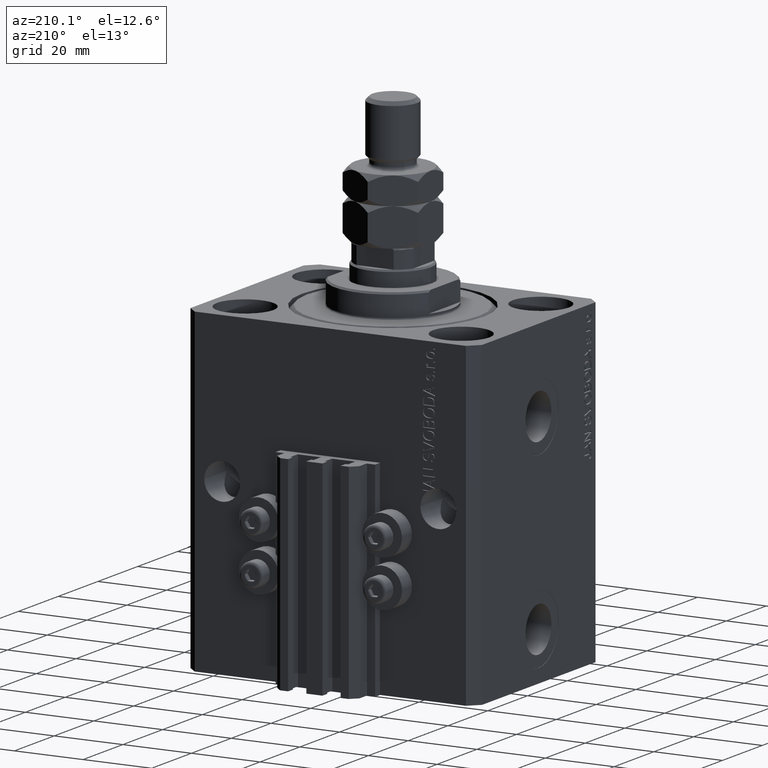
[diagram: clean part render]
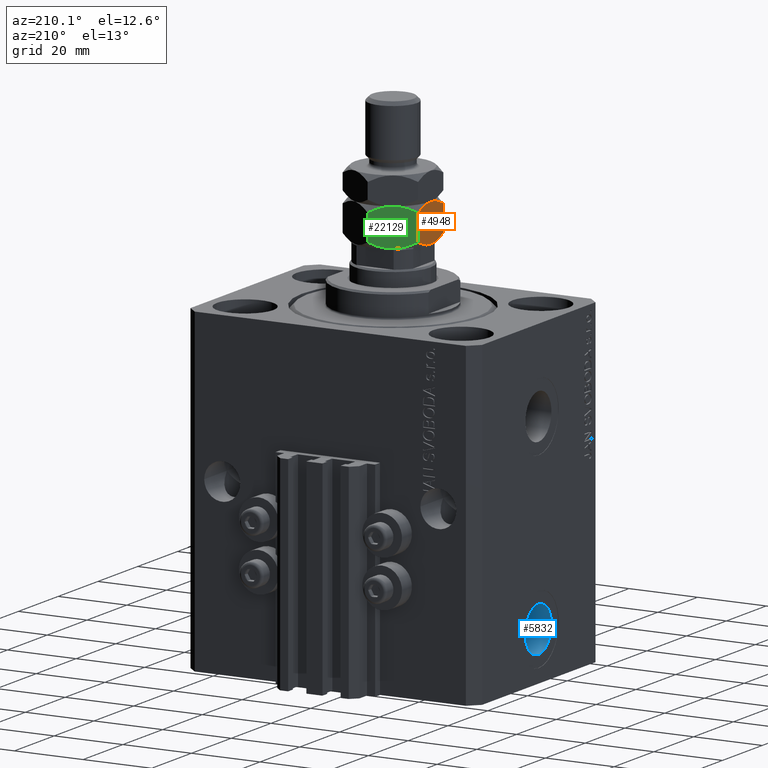
[diagram: same view with three faces highlighted in distinct colors, each labeled with its STEP entity id]
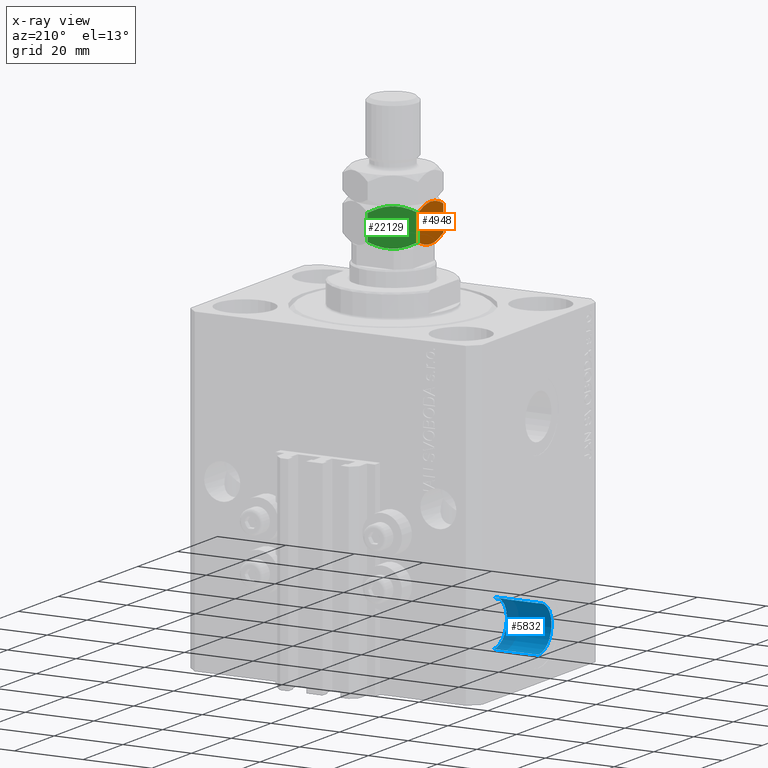
[diagram: x-ray of the same camera — body ghosted, the three highlighted faces saturated]
A machine part, auxiliary view with three faces highlighted in distinct colors.
The next image is the same camera in x-ray (body ghosted, the three faces saturated) — at least one of them is partly hidden behind the body in this view.
Their STEP definitions:

[orange] entity #4948 — the highlighted planar face has unit normal (1, 0, 0).
#365 = CARTESIAN_POINT ( 'NONE',  ( -11.00000000000000178, 4.344649988696095200, 0.7819333922108999690 ) ) ;
#545 = ORIENTED_EDGE ( 'NONE', *, *, #19711, .F. ) ;
#611 = CARTESIAN_POINT ( 'NONE',  ( -11.00000000000000000, 2.731989201781030108, 0.3224669455115858896 ) ) ;
#1012 = VERTEX_POINT ( 'NONE', #34769 ) ;
#2225 = CARTESIAN_POINT ( 'NONE',  ( -10.99999999999999822, -4.323029509133801795, 0.8096537352537663823 ) ) ;
#2493 = CARTESIAN_POINT ( 'NONE',  ( -10.99999999999999822, -5.363576505757326807, 9.791932305492514033 ) ) ;
#2686 = LINE ( 'NONE', #18270, #17317 ) ;
#2770 = ORIENTED_EDGE ( 'NONE', *, *, #49344, .T. ) ;
#3883 = CARTESIAN_POINT ( 'NONE',  ( -11.00000000000000178, 1.099784029505287197, 0.04170177774201792864 ) ) ;
#4185 = VECTOR ( 'NONE', #22500, 1000.000000000000000 ) ;
#4310 = CARTESIAN_POINT ( 'NONE',  ( -11.00000000000000000, 0.000000000000000000, 0.000000000000000000 ) ) ;
#4611 = CARTESIAN_POINT ( 'NONE',  ( -10.99999999999999467, 0.000000000000000000, 11.00000000000000000 ) ) ;
#4622 = CARTESIAN_POINT ( 'NONE',  ( -11.00000000000000178, 0.5516605423237670447, -8.385626177817573357E-17 ) ) ;
#4948 = ADVANCED_FACE ( 'NONE', ( #36039 ), #32269, .F. ) ;
#5483 = CARTESIAN_POINT ( 'NONE',  ( -10.99999999999999822, 2.205563362884376488, 10.79423439979602861 ) ) ;
#5726 = CARTESIAN_POINT ( 'NONE',  ( -11.00000000000000000, 6.350852961085890591, 9.298294077828234805 ) ) ;
#6004 = CARTESIAN_POINT ( 'NONE',  ( -11.00000000000000178, -4.344649988696089871, 10.21806660778910114 ) ) ;
#6180 = VERTEX_POINT ( 'NONE', #4310 ) ;
#8736 = ORIENTED_EDGE ( 'NONE', *, *, #31272, .F. ) ;
#10745 = ORIENTED_EDGE ( 'NONE', *, *, #24857, .F. ) ;
#11056 = EDGE_CURVE ( 'NONE', #14009, #21918, #26026, .T. ) ;
#11295 = ORIENTED_EDGE ( 'NONE', *, *, #11056, .F. ) ;
#12150 = CARTESIAN_POINT ( 'NONE',  ( -10.99999999999999822, 5.363576505757334800, 1.208067694507487744 ) ) ;
#13014 = CARTESIAN_POINT ( 'NONE',  ( -11.00000000000000178, 1.381217716854158839, 10.91695300848609840 ) ) ;
#13190 = CARTESIAN_POINT ( 'NONE',  ( -11.00000000000000000, 6.350852961085890591, 11.00000000000000000 ) ) ;
#13270 = CARTESIAN_POINT ( 'NONE',  ( -11.00000000000000178, 0.5501206218979307616, 10.98970138300551191 ) ) ;
#13445 = DIRECTION ( 'NONE',  ( 1.000000000000000000, 0.000000000000000000, -0.000000000000000000 ) ) ;
#13763 = CARTESIAN_POINT ( 'NONE',  ( -10.99999999999999822, 4.323029509133805348, 10.19034626474623195 ) ) ;
#14009 = VERTEX_POINT ( 'NONE', #4611 ) ;
#14043 = CARTESIAN_POINT ( 'NONE',  ( -11.00000000000000178, -0.5516605423237683770, 11.00000000000000355 ) ) ;
#14204 = B_SPLINE_CURVE_WITH_KNOTS ( 'NONE', 3,
 ( #31483, #4622, #3883, #23723, #611, #365, #12150, #46845 ),
 .UNSPECIFIED., .F., .F.,
 ( 4, 2, 2, 4 ),
 ( 0.02548310755563732571, 0.02714502201312678914, 0.02880693647061625257, 0.03213076538559517942 ),
 .UNSPECIFIED. ) ;
#14486 = DIRECTION ( 'NONE',  ( -0.000000000000000000, -0.000000000000000000, -1.000000000000000000 ) ) ;
#15421 = CARTESIAN_POINT ( 'NONE',  ( -11.00000000000000000, -6.350852961085885262, 9.298294077828238358 ) ) ;
#17298 = CARTESIAN_POINT ( 'NONE',  ( -11.00000000000000000, -3.802713407336412832, 0.6276910765349058563 ) ) ;
#17300 = CARTESIAN_POINT ( 'NONE',  ( -11.00000000000000000, 3.802713407336418605, 10.37230892346509670 ) ) ;
#17317 = VECTOR ( 'NONE', #14486, 1000.000000000000000 ) ;
#18265 = VERTEX_POINT ( 'NONE', #26301 ) ;
#18270 = CARTESIAN_POINT ( 'NONE',  ( -11.00000000000000000, 6.350852961085890591, 11.00000000000000000 ) ) ;
#18593 = VERTEX_POINT ( 'NONE', #44604 ) ;
#19711 = EDGE_CURVE ( 'NONE', #18265, #6180, #27665, .T. ) ;
#21283 = EDGE_LOOP ( 'NONE', ( #545, #10745, #11295, #21351, #2770, #8736 ) ) ;
#21312 = CARTESIAN_POINT ( 'NONE',  ( -11.00000000000000178, -5.349315167928746284, 1.222704691498690321 ) ) ;
#21351 = ORIENTED_EDGE ( 'NONE', *, *, #48158, .F. ) ;
#21814 = CARTESIAN_POINT ( 'NONE',  ( -11.00000000000000355, -2.743986917173865336, 0.3257244675391401389 ) ) ;
#21844 = CARTESIAN_POINT ( 'NONE',  ( -10.99999999999999822, -2.189438957741030478, 10.79717463374928421 ) ) ;
#21918 = VERTEX_POINT ( 'NONE', #15421 ) ;
#22500 = DIRECTION ( 'NONE',  ( -0.000000000000000000, -0.000000000000000000, -1.000000000000000000 ) ) ;
#22748 = LINE ( 'NONE', #38048, #4185 ) ;
#23723 = CARTESIAN_POINT ( 'NONE',  ( -10.99999999999999822, 2.189438957741033587, 0.2028253662507157051 ) ) ;
#24857 = EDGE_CURVE ( 'NONE', #21918, #18265, #22748, .T. ) ;
#25097 = CARTESIAN_POINT ( 'NONE',  ( -11.00000000000000000, -6.350852961085885262, 9.298294077828238358 ) ) ;
#25160 = B_SPLINE_CURVE_WITH_KNOTS ( 'NONE', 3,
 ( #5726, #33103, #44423, #13763, #17300, #48460, #5483, #13014, #36366, #13270, #44168, #48204 ),
 .UNSPECIFIED., .F., .F.,
 ( 4, 2, 2, 2, 2, 4 ),
 ( 0.01886453216956118090, 0.02051917601608021710, 0.02217381986259925331, 0.02382846370911829298, 0.02465578563237780935, 0.02548310755563732918 ),
 .UNSPECIFIED. ) ;
#26026 = B_SPLINE_CURVE_WITH_KNOTS ( 'NONE', 3,
 ( #32875, #14043, #28865, #21844, #33866, #6004, #2493, #25097 ),
 .UNSPECIFIED., .F., .F.,
 ( 4, 2, 2, 4 ),
 ( 0.02548310755563732918, 0.02714502201312678914, 0.02880693647061624910, 0.03213076538559517248 ),
 .UNSPECIFIED. ) ;
#26301 = CARTESIAN_POINT ( 'NONE',  ( -11.00000000000000000, -6.350852961085885262, 1.701705922171762309 ) ) ;
#27665 = B_SPLINE_CURVE_WITH_KNOTS ( 'NONE', 3,
 ( #29590, #44928, #21312, #2225, #17298, #21814, #41141, #29086, #44418, #32605, #28835, #40644 ),
 .UNSPECIFIED., .F., .F.,
 ( 4, 2, 2, 2, 2, 4 ),
 ( 0.01886453216956118784, 0.02051917601608022057, 0.02217381986259925677, 0.02382846370911829298, 0.02465578563237780935, 0.02548310755563732571 ),
 .UNSPECIFIED. ) ;
#28835 = CARTESIAN_POINT ( 'NONE',  ( -11.00000000000000000, -0.2746235576716408167, 4.192813088908779283E-17 ) ) ;
#28865 = CARTESIAN_POINT ( 'NONE',  ( -11.00000000000000178, -1.099784029505286753, 10.95829822225798189 ) ) ;
#29086 = CARTESIAN_POINT ( 'NONE',  ( -11.00000000000000178, -1.381217716854155286, 0.08304699151390193546 ) ) ;
#29590 = CARTESIAN_POINT ( 'NONE',  ( -11.00000000000000000, -6.350852961085885262, 1.701705922171762309 ) ) ;
#31272 = EDGE_CURVE ( 'NONE', #6180, #1012, #14204, .T. ) ;
#31483 = CARTESIAN_POINT ( 'NONE',  ( -11.00000000000000000, 0.000000000000000000, 0.000000000000000000 ) ) ;
#32269 = PLANE ( 'NONE',  #36106 ) ;
#32605 = CARTESIAN_POINT ( 'NONE',  ( -11.00000000000000178, -0.5501206218979342033, 0.01029861699449343727 ) ) ;
#32775 = DIRECTION ( 'NONE',  ( -0.000000000000000000, 0.000000000000000000, -1.000000000000000000 ) ) ;
#32875 = CARTESIAN_POINT ( 'NONE',  ( -10.99999999999999467, 0.000000000000000000, 11.00000000000000000 ) ) ;
#33103 = CARTESIAN_POINT ( 'NONE',  ( -10.99999999999999822, 5.856287164594794703, 9.545576976073807174 ) ) ;
#33866 = CARTESIAN_POINT ( 'NONE',  ( -11.00000000000000000, -2.731989201781029220, 10.67753305448841772 ) ) ;
#34769 = CARTESIAN_POINT ( 'NONE',  ( -11.00000000000000000, 6.350852961085892368, 1.701705922171765195 ) ) ;
#36039 = FACE_OUTER_BOUND ( 'NONE', #21283, .T. ) ;
#36106 = AXIS2_PLACEMENT_3D ( 'NONE', #13190, #13445, #32775 ) ;
#36366 = CARTESIAN_POINT ( 'NONE',  ( -11.00000000000000000, 1.102880524211963253, 10.94828572630293273 ) ) ;
#38048 = CARTESIAN_POINT ( 'NONE',  ( -11.00000000000000000, -6.350852961085885262, 11.00000000000000000 ) ) ;
#40644 = CARTESIAN_POINT ( 'NONE',  ( -11.00000000000000000, 0.000000000000000000, 0.000000000000000000 ) ) ;
#41141 = CARTESIAN_POINT ( 'NONE',  ( -10.99999999999999822, -2.205563362884371603, 0.2057656002039695009 ) ) ;
#44168 = CARTESIAN_POINT ( 'NONE',  ( -11.00000000000000000, 0.2746235576716384852, 11.00000000000000355 ) ) ;
#44418 = CARTESIAN_POINT ( 'NONE',  ( -11.00000000000000000, -1.102880524211966140, 0.05171427369706943500 ) ) ;
#44423 = CARTESIAN_POINT ( 'NONE',  ( -11.00000000000000178, 5.349315167928749837, 9.777295308501310345 ) ) ;
#44604 = CARTESIAN_POINT ( 'NONE',  ( -11.00000000000000000, 6.350852961085890591, 9.298294077828234805 ) ) ;
#44928 = CARTESIAN_POINT ( 'NONE',  ( -10.99999999999999822, -5.856287164594788486, 1.454423023926191938 ) ) ;
#46845 = CARTESIAN_POINT ( 'NONE',  ( -11.00000000000000000, 6.350852961085892368, 1.701705922171765195 ) ) ;
#48158 = EDGE_CURVE ( 'NONE', #18593, #14009, #25160, .T. ) ;
#48204 = CARTESIAN_POINT ( 'NONE',  ( -10.99999999999999467, 0.000000000000000000, 11.00000000000000000 ) ) ;
#48460 = CARTESIAN_POINT ( 'NONE',  ( -11.00000000000000355, 2.743986917173868889, 10.67427553246086447 ) ) ;
#49344 = EDGE_CURVE ( 'NONE', #18593, #1012, #2686, .T. ) ;

[blue] entity #5832 — the highlighted cylindrical surface (edge-blend (fillet) strip) has radius 6.58 mm, axis along (-1, -0, -0).
#50 = VERTEX_POINT ( 'NONE', #8702 ) ;
#110 = DIRECTION ( 'NONE',  ( 0.000000000000000000, 0.000000000000000000, 1.000000000000000000 ) ) ;
#1738 = AXIS2_PLACEMENT_3D ( 'NONE', #48171, #13729, #20777 ) ;
#2468 = DIRECTION ( 'NONE',  ( -1.000000000000000000, -0.000000000000000000, -0.000000000000000000 ) ) ;
#2605 = AXIS2_PLACEMENT_3D ( 'NONE', #31680, #43500, #32681 ) ;
#3756 = VERTEX_POINT ( 'NONE', #15898 ) ;
#5832 = ADVANCED_FACE ( 'NONE', ( #19213 ), #33773, .F. ) ;
#7383 = VECTOR ( 'NONE', #31791, 1000.000000000000000 ) ;
#8702 = CARTESIAN_POINT ( 'NONE',  ( -29.40000000000000213, -8.868892119425131862E-15, -85.57999999999999829 ) ) ;
#9492 = CARTESIAN_POINT ( 'NONE',  ( -29.40000000000000213, -8.868892119425131862E-15, -85.57999999999999829 ) ) ;
#9969 = EDGE_CURVE ( 'NONE', #26102, #3756, #24253, .T. ) ;
#13729 = DIRECTION ( 'NONE',  ( -1.000000000000000000, 0.000000000000000000, 0.000000000000000000 ) ) ;
#14496 = VERTEX_POINT ( 'NONE', #34636 ) ;
#15192 = CARTESIAN_POINT ( 'NONE',  ( -29.40000000000000213, -9.674709713264090904E-15, -79.00000000000000000 ) ) ;
#15898 = CARTESIAN_POINT ( 'NONE',  ( -42.39999999999999858, -9.674709713264090904E-15, -72.42000000000000171 ) ) ;
#19213 = FACE_OUTER_BOUND ( 'NONE', #41324, .T. ) ;
#20777 = DIRECTION ( 'NONE',  ( 0.000000000000000000, 0.000000000000000000, 1.000000000000000000 ) ) ;
#23646 = EDGE_CURVE ( 'NONE', #14496, #3756, #46649, .T. ) ;
#24021 = CARTESIAN_POINT ( 'NONE',  ( -29.40000000000000213, -9.674709713264090904E-15, -72.42000000000000171 ) ) ;
#24253 = CIRCLE ( 'NONE', #2605, 6.580000000000002736 ) ;
#26102 = VERTEX_POINT ( 'NONE', #41287 ) ;
#26373 = EDGE_CURVE ( 'NONE', #50, #14496, #47483, .T. ) ;
#30840 = EDGE_CURVE ( 'NONE', #50, #26102, #36111, .T. ) ;
#31680 = CARTESIAN_POINT ( 'NONE',  ( -42.39999999999999858, -9.674709713264090904E-15, -79.00000000000000000 ) ) ;
#31791 = DIRECTION ( 'NONE',  ( -1.000000000000000000, -0.000000000000000000, -0.000000000000000000 ) ) ;
#32681 = DIRECTION ( 'NONE',  ( 0.000000000000000000, 0.000000000000000000, 1.000000000000000000 ) ) ;
#33773 = CYLINDRICAL_SURFACE ( 'NONE', #40157, 6.580000000000002736 ) ;
#34271 = DIRECTION ( 'NONE',  ( -1.000000000000000000, -0.000000000000000000, -0.000000000000000000 ) ) ;
#34636 = CARTESIAN_POINT ( 'NONE',  ( -29.40000000000000213, -9.674709713264090904E-15, -72.42000000000000171 ) ) ;
#36111 = LINE ( 'NONE', #9492, #43603 ) ;
#39881 = ORIENTED_EDGE ( 'NONE', *, *, #26373, .F. ) ;
#40157 = AXIS2_PLACEMENT_3D ( 'NONE', #15192, #34271, #110 ) ;
#40283 = ORIENTED_EDGE ( 'NONE', *, *, #23646, .F. ) ;
#41287 = CARTESIAN_POINT ( 'NONE',  ( -42.39999999999999858, -8.868892119425131862E-15, -85.57999999999999829 ) ) ;
#41324 = EDGE_LOOP ( 'NONE', ( #39881, #47644, #42320, #40283 ) ) ;
#42320 = ORIENTED_EDGE ( 'NONE', *, *, #9969, .T. ) ;
#43500 = DIRECTION ( 'NONE',  ( -1.000000000000000000, 0.000000000000000000, 0.000000000000000000 ) ) ;
#43603 = VECTOR ( 'NONE', #2468, 1000.000000000000000 ) ;
#46649 = LINE ( 'NONE', #24021, #7383 ) ;
#47483 = CIRCLE ( 'NONE', #1738, 6.580000000000002736 ) ;
#47644 = ORIENTED_EDGE ( 'NONE', *, *, #30840, .T. ) ;
#48171 = CARTESIAN_POINT ( 'NONE',  ( -29.40000000000000213, -9.674709713264090904E-15, -79.00000000000000000 ) ) ;

[green] entity #22129 — the highlighted planar face has unit normal (0.5, -0.866, 0).
#578 = EDGE_CURVE ( 'NONE', #14090, #18593, #42290, .T. ) ;
#822 = DIRECTION ( 'NONE',  ( 0.8660254037844389297, 0.4999999999999992784, 0.000000000000000000 ) ) ;
#939 = LINE ( 'NONE', #1183, #15912 ) ;
#1012 = VERTEX_POINT ( 'NONE', #34769 ) ;
#1016 = CARTESIAN_POINT ( 'NONE',  ( -6.470625887979888802, 8.965888323921223702, 0.04365929743512723255 ) ) ;
#1043 = CARTESIAN_POINT ( 'NONE',  ( -10.13851939750335696, 6.848229018838968507, 9.795670135581390880 ) ) ;
#1183 = CARTESIAN_POINT ( 'NONE',  ( 0.000000000000000000, 12.70170592217176342, 11.00000000000000000 ) ) ;
#2686 = LINE ( 'NONE', #18270, #17317 ) ;
#4816 = CARTESIAN_POINT ( 'NONE',  ( -5.499999999999990230, 9.526279441628824785, 11.00000000000000000 ) ) ;
#5823 = CARTESIAN_POINT ( 'NONE',  ( -4.543329525579419048, 10.07861339756131791, 1.768604793866978714E-15 ) ) ;
#7916 = CARTESIAN_POINT ( 'NONE',  ( -3.115032419653383400, 10.90324111615047542, 10.67178078790959539 ) ) ;
#8561 = CARTESIAN_POINT ( 'NONE',  ( -9.255521992360788985, 7.358027808391769398, 0.7806233875467772920 ) ) ;
#11193 = CARTESIAN_POINT ( 'NONE',  ( -5.018290712253354435, 9.804394428580495813, 11.00000000000000178 ) ) ;
#12583 = CARTESIAN_POINT ( 'NONE',  ( -7.884967580346608607, 8.149317767107183030, 0.3282192120904074417 ) ) ;
#13120 = DIRECTION ( 'NONE',  ( 0.4999999999999993339, -0.8660254037844390407, 0.000000000000000000 ) ) ;
#13738 = VERTEX_POINT ( 'NONE', #17728 ) ;
#14090 = VERTEX_POINT ( 'NONE', #22426 ) ;
#14486 = DIRECTION ( 'NONE',  ( -0.000000000000000000, -0.000000000000000000, -1.000000000000000000 ) ) ;
#14730 = CARTESIAN_POINT ( 'NONE',  ( -1.744478007639206130, 11.69453107486589083, 10.21937661245322637 ) ) ;
#15220 = CARTESIAN_POINT ( 'NONE',  ( -4.327962126576701651E-16, 12.70170592217176342, 9.298294077828241910 ) ) ;
#15912 = VECTOR ( 'NONE', #16530, 1000.000000000000000 ) ;
#15932 = EDGE_CURVE ( 'NONE', #36559, #33643, #46424, .T. ) ;
#16384 = CARTESIAN_POINT ( 'NONE',  ( -11.00000000000000000, 6.350852961085890591, 9.298294077828234805 ) ) ;
#16530 = DIRECTION ( 'NONE',  ( -0.000000000000000000, -0.000000000000000000, -1.000000000000000000 ) ) ;
#17317 = VECTOR ( 'NONE', #14486, 1000.000000000000000 ) ;
#17376 = AXIS2_PLACEMENT_3D ( 'NONE', #35229, #13120, #822 ) ;
#17728 = CARTESIAN_POINT ( 'NONE',  ( -4.327962126576701651E-16, 12.70170592217176342, 9.298294077828241910 ) ) ;
#18270 = CARTESIAN_POINT ( 'NONE',  ( -11.00000000000000000, 6.350852961085890591, 11.00000000000000000 ) ) ;
#18593 = VERTEX_POINT ( 'NONE', #44604 ) ;
#19875 = CARTESIAN_POINT ( 'NONE',  ( -10.13752086928278118, 6.848805519375908979, 1.203753363881748362 ) ) ;
#20627 = CARTESIAN_POINT ( 'NONE',  ( -11.00000000000000000, 6.350852961085892368, 1.701705922171765195 ) ) ;
#20903 = CARTESIAN_POINT ( 'NONE',  ( 9.006588997586899406E-16, 12.70170592217176342, 1.701705922171758312 ) ) ;
#21777 = CARTESIAN_POINT ( 'NONE',  ( -5.499999999999992895, 9.526279441628830114, 0.000000000000000000 ) ) ;
#22129 = ADVANCED_FACE ( 'NONE', ( #47557 ), #46568, .F. ) ;
#22396 = ORIENTED_EDGE ( 'NONE', *, *, #23179, .F. ) ;
#22426 = CARTESIAN_POINT ( 'NONE',  ( -5.499999999999990230, 9.526279441628824785, 11.00000000000000000 ) ) ;
#23179 = EDGE_CURVE ( 'NONE', #1012, #36559, #39909, .T. ) ;
#23932 = CARTESIAN_POINT ( 'NONE',  ( -3.602926119288147433, 10.62155555733042434, 0.1689086083647601266 ) ) ;
#24914 = CARTESIAN_POINT ( 'NONE',  ( -1.748214531935804672, 11.69237379155741330, 0.7776848045220272621 ) ) ;
#27195 = CARTESIAN_POINT ( 'NONE',  ( -9.251785468064188223, 7.360185091700242488, 10.22231519547797340 ) ) ;
#27363 = ORIENTED_EDGE ( 'NONE', *, *, #49344, .F. ) ;
#31018 = B_SPLINE_CURVE_WITH_KNOTS ( 'NONE', 3,
 ( #15220, #49399, #14730, #7916, #42342, #49153, #11193, #42093 ),
 .UNSPECIFIED., .F., .F.,
 ( 4, 2, 2, 4 ),
 ( 2.544311317609508508E-07, 0.003291871675740026034, 0.004937680298044156910, 0.006583488920348289086 ),
 .UNSPECIFIED. ) ;
#32172 = CARTESIAN_POINT ( 'NONE',  ( -7.397073880711845462, 8.431003325927239445, 10.83109139163524404 ) ) ;
#32729 = EDGE_LOOP ( 'NONE', ( #22396, #27363, #40519, #40189, #35615, #42478 ) ) ;
#33643 = VERTEX_POINT ( 'NONE', #36337 ) ;
#34769 = CARTESIAN_POINT ( 'NONE',  ( -11.00000000000000000, 6.350852961085892368, 1.701705922171765195 ) ) ;
#35172 = CARTESIAN_POINT ( 'NONE',  ( -5.981709287746635795, 9.248164454677164414, 1.734723475976807094E-15 ) ) ;
#35229 = CARTESIAN_POINT ( 'NONE',  ( 0.000000000000000000, 12.70170592217176342, 11.00000000000000000 ) ) ;
#35418 = CARTESIAN_POINT ( 'NONE',  ( -7.420105971005176215, 8.417705742396382362, 0.2081220748670755127 ) ) ;
#35446 = CARTESIAN_POINT ( 'NONE',  ( -6.456670474420569406, 8.973945485696344093, 11.00000000000000000 ) ) ;
#35615 = ORIENTED_EDGE ( 'NONE', *, *, #45156, .T. ) ;
#35962 = CARTESIAN_POINT ( 'NONE',  ( -5.499999999999992895, 9.526279441628830114, 0.000000000000000000 ) ) ;
#36337 = CARTESIAN_POINT ( 'NONE',  ( 9.006588997586899406E-16, 12.70170592217176342, 1.701705922171758312 ) ) ;
#36559 = VERTEX_POINT ( 'NONE', #21777 ) ;
#39498 = EDGE_CURVE ( 'NONE', #13738, #14090, #31018, .T. ) ;
#39909 = B_SPLINE_CURVE_WITH_KNOTS ( 'NONE', 3,
 ( #20627, #19875, #8561, #12583, #35418, #1016, #35172, #47262 ),
 .UNSPECIFIED., .F., .F.,
 ( 4, 2, 2, 4 ),
 ( 2.544311317612473652E-07, 0.003291871675740032539, 0.004937680298044168185, 0.006583488920348303831 ),
 .UNSPECIFIED. ) ;
#40189 = ORIENTED_EDGE ( 'NONE', *, *, #39498, .F. ) ;
#40519 = ORIENTED_EDGE ( 'NONE', *, *, #578, .F. ) ;
#42093 = CARTESIAN_POINT ( 'NONE',  ( -5.499999999999990230, 9.526279441628824785, 11.00000000000000000 ) ) ;
#42290 = B_SPLINE_CURVE_WITH_KNOTS ( 'NONE', 3,
 ( #4816, #35446, #32172, #27195, #1043, #16384 ),
 .UNSPECIFIED., .F., .F.,
 ( 4, 2, 4 ),
 ( 0.006583488920348289086, 0.009852050593448704457, 0.01312061226654911983 ),
 .UNSPECIFIED. ) ;
#42342 = CARTESIAN_POINT ( 'NONE',  ( -3.579894028994817123, 10.63485314086127786, 10.79187792513292798 ) ) ;
#42478 = ORIENTED_EDGE ( 'NONE', *, *, #15932, .F. ) ;
#44011 = CARTESIAN_POINT ( 'NONE',  ( -0.8614806024966418230, 12.20432986441868728, 1.204329864418604235 ) ) ;
#44604 = CARTESIAN_POINT ( 'NONE',  ( -11.00000000000000000, 6.350852961085890591, 9.298294077828234805 ) ) ;
#45156 = EDGE_CURVE ( 'NONE', #13738, #33643, #939, .T. ) ;
#46424 = B_SPLINE_CURVE_WITH_KNOTS ( 'NONE', 3,
 ( #35962, #5823, #23932, #24914, #44011, #20903 ),
 .UNSPECIFIED., .F., .F.,
 ( 4, 2, 4 ),
 ( 0.006583488920348303831, 0.009852050593448711396, 0.01312061226654911809 ),
 .UNSPECIFIED. ) ;
#46568 = PLANE ( 'NONE',  #17376 ) ;
#47262 = CARTESIAN_POINT ( 'NONE',  ( -5.499999999999992895, 9.526279441628830114, 0.000000000000000000 ) ) ;
#47557 = FACE_OUTER_BOUND ( 'NONE', #32729, .T. ) ;
#49153 = CARTESIAN_POINT ( 'NONE',  ( -4.529374112020101428, 10.08667055933643830, 10.95634070256487469 ) ) ;
#49344 = EDGE_CURVE ( 'NONE', #18593, #1012, #2686, .T. ) ;
#49399 = CARTESIAN_POINT ( 'NONE',  ( -0.8624791307172121613, 12.20375336388174681, 9.796246636118258522 ) ) ;